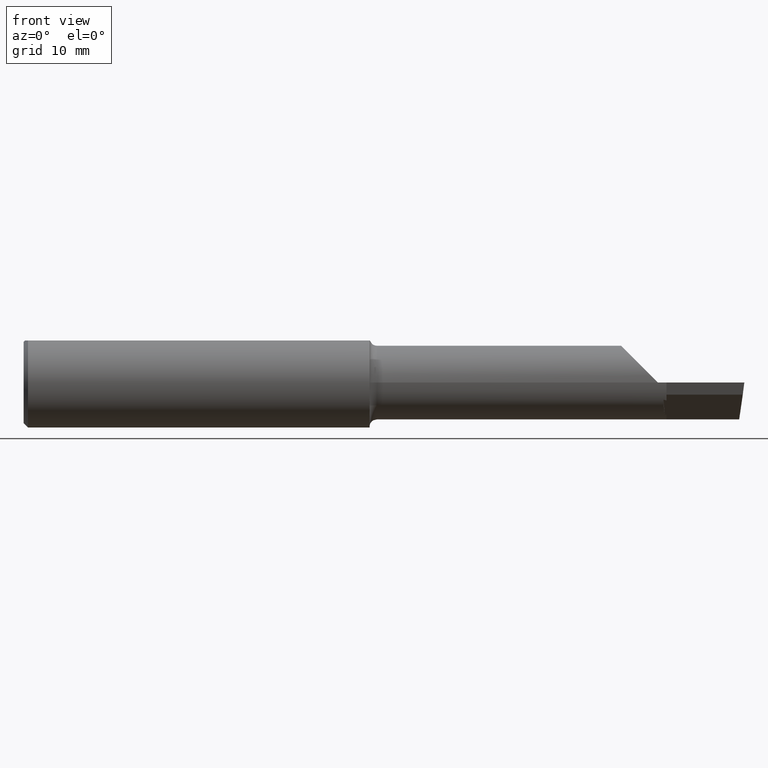
[diagram: clean part render]
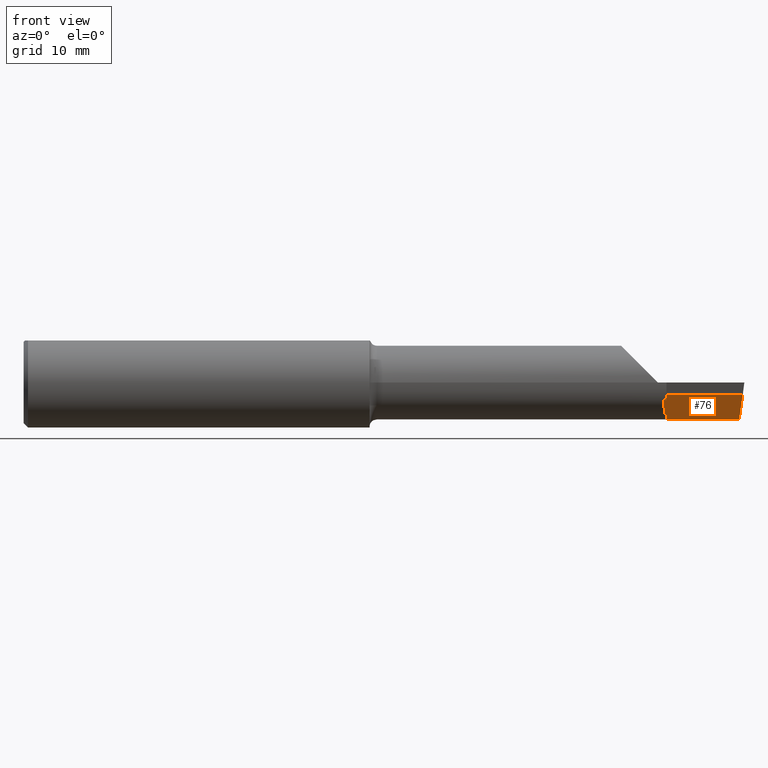
[diagram: same view with one face highlighted and labeled with its STEP entity id]
A machine part, front view. The second image highlights one B-rep face of the part: STEP entity #76.
In plain terms, the highlighted planar face has unit normal (0.0684, 0.71, 0.7009).
Its self-contained STEP definition (entity closure, byte-faithful):
#4 = EDGE_CURVE ( 'NONE', #593, #651, #60, .T. ) ;
#9 = LINE ( 'NONE', #303, #270 ) ;
#20 = CARTESIAN_POINT ( 'NONE',  ( 2.229999999999999982, -0.07288638121117577140, -0.06196650465749590359 ) ) ;
#36 = AXIS2_PLACEMENT_3D ( 'NONE', #119, #638, #222 ) ;
#40 =( BOUNDED_CURVE ( )  B_SPLINE_CURVE ( 3, ( #347, #561, #564, #394 ),
 .UNSPECIFIED., .F., .F. ) 
 B_SPLINE_CURVE_WITH_KNOTS ( ( 4, 4 ),
 ( 3.414788950605319062, 3.426164066945256437 ),
 .UNSPECIFIED. ) 
 CURVE ( )  GEOMETRIC_REPRESENTATION_ITEM ( )  RATIONAL_B_SPLINE_CURVE ( ( 1.000000000000000000, 0.9999892172564213144, 0.9999892172564213144, 1.000000000000000000 ) ) 
 REPRESENTATION_ITEM ( '' )  );
#48 = DIRECTION ( 'NONE',  ( -4.798168849487817696E-18, -0.7025528302622682242, 0.7116315905652844664 ) ) ;
#49 = CARTESIAN_POINT ( 'NONE',  ( 2.217581325552286042, -0.09140237746813982544, -0.04199999999999994016 ) ) ;
#52 = CARTESIAN_POINT ( 'NONE',  ( 2.229999999999999982, -0.07288638121117577140, -0.06196650465749590359 ) ) ;
#60 = LINE ( 'NONE', #335, #487 ) ;
#64 = EDGE_CURVE ( 'NONE', #364, #593, #320, .T. ) ;
#72 = ORIENTED_EDGE ( 'NONE', *, *, #642, .F. ) ;
#76 = ADVANCED_FACE ( 'NONE', ( #169 ), #601, .F. ) ;
#85 = VERTEX_POINT ( 'NONE', #160 ) ;
#106 = CARTESIAN_POINT ( 'NONE',  ( 2.229999999999999982, -0.007794043580176791657, -0.1278999999999999859 ) ) ;
#119 = CARTESIAN_POINT ( 'NONE',  ( 2.217581325552286042, -0.09140237746813982544, -0.04199999999999994016 ) ) ;
#128 = DIRECTION ( 'NONE',  ( 0.1020886612874973703, -0.7038430390621321919, 0.7029814233678642887 ) ) ;
#134 = EDGE_CURVE ( 'NONE', #299, #85, #187, .T. ) ;
#135 = CARTESIAN_POINT ( 'NONE',  ( 2.229999999999999982, -0.1250987282888250673, -0.009079441937751871541 ) ) ;
#141 = CARTESIAN_POINT ( 'NONE',  ( 2.229999999999999982, -0.09259815981058529266, -0.04199999999999994016 ) ) ;
#153 = ORIENTED_EDGE ( 'NONE', *, *, #134, .F. ) ;
#155 = EDGE_CURVE ( 'NONE', #85, #524, #40, .T. ) ;
#160 = CARTESIAN_POINT ( 'NONE',  ( 2.229999999999999982, -0.02439791101555209216, -0.1110815685830198463 ) ) ;
#164 = ORIENTED_EDGE ( 'NONE', *, *, #475, .F. ) ;
#165 = VECTOR ( 'NONE', #509, 39.37007874015748143 ) ;
#169 = FACE_OUTER_BOUND ( 'NONE', #372, .T. ) ;
#174 = VERTEX_POINT ( 'NONE', #236 ) ;
#187 = LINE ( 'NONE', #135, #165 ) ;
#205 = ORIENTED_EDGE ( 'NONE', *, *, #155, .F. ) ;
#222 = DIRECTION ( 'NONE',  ( 0.000000000000000000, -0.7025528302622682242, 0.7116315905652844664 ) ) ;
#231 = CARTESIAN_POINT ( 'NONE',  ( 2.219243579197731631, -0.07413921331227923961, -0.05964837307989710041 ) ) ;
#236 = CARTESIAN_POINT ( 'NONE',  ( 2.494657007549286654, -0.1180817311663149571, -0.04199999999999994016 ) ) ;
#239 = LINE ( 'NONE', #610, #477 ) ;
#261 = DIRECTION ( 'NONE',  ( -0.9953961983671787417, 0.09584575252022423109, -1.833768617864262544E-17 ) ) ;
#264 = EDGE_CURVE ( 'NONE', #524, #364, #462, .T. ) ;
#270 = VECTOR ( 'NONE', #503, 39.37007874015748143 ) ;
#277 = CARTESIAN_POINT ( 'NONE',  ( 2.226541365962205976, -0.07331194456661031811, -0.06119810979516131233 ) ) ;
#299 = VERTEX_POINT ( 'NONE', #106 ) ;
#303 = CARTESIAN_POINT ( 'NONE',  ( 2.217581325552286042, -0.09140237746813982544, -0.04199999999999994016 ) ) ;
#320 =( BOUNDED_CURVE ( )  B_SPLINE_CURVE ( 3, ( #231, #387, #277, #52 ),
 .UNSPECIFIED., .F., .T. ) 
 B_SPLINE_CURVE_WITH_KNOTS ( ( 4, 4 ),
 ( 2.847793815029257658, 2.868396356574266282 ),
 .UNSPECIFIED. ) 
 CURVE ( )  GEOMETRIC_REPRESENTATION_ITEM ( )  RATIONAL_B_SPLINE_CURVE ( ( 1.000000000000000000, 0.9999646282529517372, 0.9999646282529517372, 1.000000000000000000 ) ) 
 REPRESENTATION_ITEM ( '' )  );
#327 = CARTESIAN_POINT ( 'NONE',  ( 2.219243579197731631, -0.07413921331227923961, -0.05964837307989710041 ) ) ;
#335 = CARTESIAN_POINT ( 'NONE',  ( 2.229999999999999982, -0.1250987282888250673, -0.009079441937751871541 ) ) ;
#344 = ORIENTED_EDGE ( 'NONE', *, *, #4, .F. ) ;
#347 = CARTESIAN_POINT ( 'NONE',  ( 2.229999999999999982, -0.02439791101555209216, -0.1110815685830198463 ) ) ;
#364 = VERTEX_POINT ( 'NONE', #327 ) ;
#372 = EDGE_LOOP ( 'NONE', ( #72, #659, #164, #344, #582, #689, #205, #153 ) ) ;
#382 = CARTESIAN_POINT ( 'NONE',  ( 2.482182401943660466, -0.03207644703550099896, -0.1278999999999999859 ) ) ;
#387 = CARTESIAN_POINT ( 'NONE',  ( 2.222955765532498518, -0.07372957003912070095, -0.06042537193620695773 ) ) ;
#394 = CARTESIAN_POINT ( 'NONE',  ( 2.224155181711049423, -0.02313027091166865515, -0.1117955251181489279 ) ) ;
#420 = LINE ( 'NONE', #529, #489 ) ;
#449 = VERTEX_POINT ( 'NONE', #382 ) ;
#462 = LINE ( 'NONE', #49, #497 ) ;
#475 = EDGE_CURVE ( 'NONE', #651, #174, #9, .T. ) ;
#477 = VECTOR ( 'NONE', #128, 39.37007874015748854 ) ;
#487 = VECTOR ( 'NONE', #48, 39.37007874015748143 ) ;
#489 = VECTOR ( 'NONE', #261, 39.37007874015748143 ) ;
#497 = VECTOR ( 'NONE', #630, 39.37007874015748143 ) ;
#503 = DIRECTION ( 'NONE',  ( 0.9953961983671787417, -0.09584575252022421721, -0.000000000000000000 ) ) ;
#509 = DIRECTION ( 'NONE',  ( -4.798168849487817696E-18, -0.7025528302622682242, 0.7116315905652844664 ) ) ;
#513 = CARTESIAN_POINT ( 'NONE',  ( 2.224155181711049423, -0.02313027091166865515, -0.1117955251181489279 ) ) ;
#524 = VERTEX_POINT ( 'NONE', #513 ) ;
#529 = CARTESIAN_POINT ( 'NONE',  ( 2.493055307542864529, -0.03312338876679009336, -0.1278999999999999859 ) ) ;
#561 = CARTESIAN_POINT ( 'NONE',  ( 2.228090435553064630, -0.02397672015612764551, -0.1113219560835474881 ) ) ;
#564 = CARTESIAN_POINT ( 'NONE',  ( 2.226142141782129436, -0.02355416889857130450, -0.1115599441614216064 ) ) ;
#581 = EDGE_CURVE ( 'NONE', #449, #174, #239, .T. ) ;
#582 = ORIENTED_EDGE ( 'NONE', *, *, #64, .F. ) ;
#593 = VERTEX_POINT ( 'NONE', #20 ) ;
#601 = PLANE ( 'NONE',  #36 ) ;
#610 = CARTESIAN_POINT ( 'NONE',  ( 2.489852269752854230, -0.08495580699522407853, -0.07508537277742928506 ) ) ;
#630 = DIRECTION ( 'NONE',  ( -0.06717917588521488126, -0.6976824170844042605, 0.7132504491541850067 ) ) ;
#638 = DIRECTION ( 'NONE',  ( 0.06836202603457079696, 0.7099667855717585185, 0.7009092642998474565 ) ) ;
#642 = EDGE_CURVE ( 'NONE', #449, #299, #420, .T. ) ;
#651 = VERTEX_POINT ( 'NONE', #141 ) ;
#659 = ORIENTED_EDGE ( 'NONE', *, *, #581, .T. ) ;
#689 = ORIENTED_EDGE ( 'NONE', *, *, #264, .F. ) ;